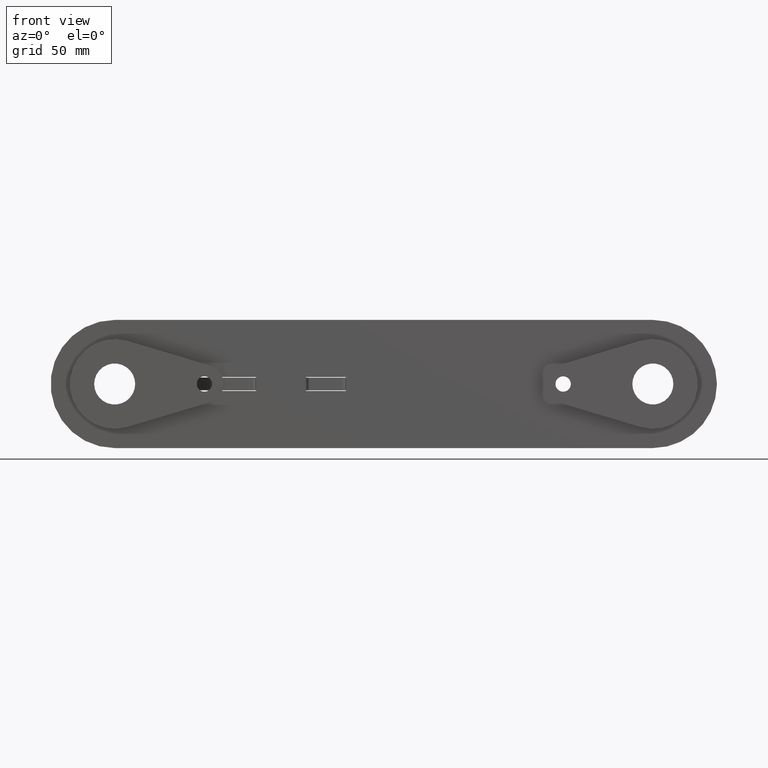
[diagram: clean part render]
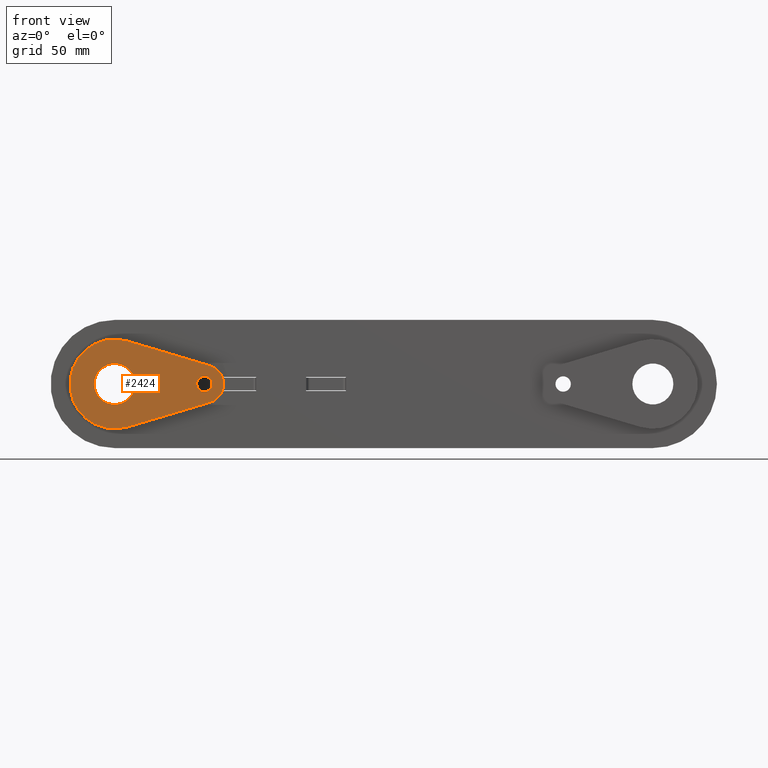
[diagram: same view with one face highlighted and labeled with its STEP entity id]
A machine part, front view. The second image highlights one B-rep face of the part: STEP entity #2424.
In plain terms, the highlighted planar face has unit normal (-0, -1, -0).
Its self-contained STEP definition (entity closure, byte-faithful):
#1 = LINE ( 'NONE', #863, #1151 ) ;
#3 = DIRECTION ( 'NONE',  ( 1.000000000000000000, -8.881784197001216825E-16, 3.081487911019565104E-31 ) ) ;
#19 = CIRCLE ( 'NONE', #204, 7.500000000000027534 ) ;
#39 = CARTESIAN_POINT ( 'NONE',  ( 37.14285714285735196, -7.187361356249414968, 2.775557561562891351E-14 ) ) ;
#52 = VERTEX_POINT ( 'NONE', #2033 ) ;
#70 = CIRCLE ( 'NONE', #921, 3.000000000000016431 ) ;
#75 = AXIS2_PLACEMENT_3D ( 'NONE', #675, #1703, #902 ) ;
#86 = VERTEX_POINT ( 'NONE', #2557 ) ;
#146 = CARTESIAN_POINT ( 'NONE',  ( 0.000000000000000000, 0.000000000000000000, 0.000000000000000000 ) ) ;
#148 = EDGE_CURVE ( 'NONE', #644, #86, #1186, .T. ) ;
#173 = DIRECTION ( 'NONE',  ( 1.000000000000000000, -8.881784197001211894E-16, 0.000000000000000000 ) ) ;
#174 = LINE ( 'NONE', #1888, #448 ) ;
#204 = AXIS2_PLACEMENT_3D ( 'NONE', #2359, #1288, #1694 ) ;
#208 = DIRECTION ( 'NONE',  ( 1.000000000000000000, -8.881784197001216825E-16, 3.081487911019565104E-31 ) ) ;
#256 = CARTESIAN_POINT ( 'NONE',  ( 35.00000000000007105, -4.510281037539698445E-14, 2.775557561562891351E-14 ) ) ;
#282 = DIRECTION ( 'NONE',  ( 3.451266460341922270E-31, 2.588449845256441483E-31, 1.000000000000000000 ) ) ;
#294 = VERTEX_POINT ( 'NONE', #39 ) ;
#332 = DIRECTION ( 'NONE',  ( 3.451266460341922270E-31, 2.588449845256441483E-31, 1.000000000000000000 ) ) ;
#365 = FACE_BOUND ( 'NONE', #2235, .T. ) ;
#377 = PLANE ( 'NONE',  #2591 ) ;
#387 = AXIS2_PLACEMENT_3D ( 'NONE', #2568, #2347, #173 ) ;
#406 = EDGE_LOOP ( 'NONE', ( #1897, #1877 ) ) ;
#414 = CARTESIAN_POINT ( 'NONE',  ( 32.00000000000007105, -4.554032802850601750E-14, 2.775557561562891351E-14 ) ) ;
#446 = CIRCLE ( 'NONE', #75, 7.500000000000027534 ) ;
#448 = VECTOR ( 'NONE', #824, 1000.000000000000114 ) ;
#536 = AXIS2_PLACEMENT_3D ( 'NONE', #2255, #332, #1830 ) ;
#607 = ORIENTED_EDGE ( 'NONE', *, *, #626, .T. ) ;
#626 = EDGE_CURVE ( 'NONE', #1853, #1298, #19, .T. ) ;
#644 = VERTEX_POINT ( 'NONE', #414 ) ;
#657 = CARTESIAN_POINT ( 'NONE',  ( 5.000000000000101252, 16.77050983124844308, 2.081668171172168513E-14 ) ) ;
#673 = CARTESIAN_POINT ( 'NONE',  ( -8.000000000000000000, 4.615697844965258600E-15, 2.761013168273537115E-30 ) ) ;
#675 = CARTESIAN_POINT ( 'NONE',  ( 35.00000000000007105, -4.510281037539698445E-14, 2.775557561562891351E-14 ) ) ;
#714 = CARTESIAN_POINT ( 'NONE',  ( 37.14285714285729512, 7.187361356249231115, 7.632783294297951215E-14 ) ) ;
#802 = ORIENTED_EDGE ( 'NONE', *, *, #1824, .T. ) ;
#824 = DIRECTION ( 'NONE',  ( -0.9583148474999098054, 0.2857142857142860315, -3.389636702121520213E-31 ) ) ;
#863 = CARTESIAN_POINT ( 'NONE',  ( 5.000000000000004441, -16.77050983124852124, 3.469446951953614189E-14 ) ) ;
#902 = DIRECTION ( 'NONE',  ( 1.000000000000000000, -8.881784197001219783E-16, 0.000000000000000000 ) ) ;
#921 = AXIS2_PLACEMENT_3D ( 'NONE', #256, #282, #1576 ) ;
#1068 = VERTEX_POINT ( 'NONE', #673 ) ;
#1151 = VECTOR ( 'NONE', #1714, 1000.000000000000114 ) ;
#1186 = CIRCLE ( 'NONE', #387, 3.000000000000016431 ) ;
#1202 = CIRCLE ( 'NONE', #2774, 8.000000000000031974 ) ;
#1209 = VERTEX_POINT ( 'NONE', #657 ) ;
#1271 = CARTESIAN_POINT ( 'NONE',  ( 0.000000000000000000, 0.000000000000000000, 0.000000000000000000 ) ) ;
#1288 = DIRECTION ( 'NONE',  ( 3.451266460341922270E-31, 2.588449845256441483E-31, 1.000000000000000000 ) ) ;
#1298 = VERTEX_POINT ( 'NONE', #714 ) ;
#1311 = DIRECTION ( 'NONE',  ( 3.451266460341922270E-31, 2.588449845256441483E-31, 1.000000000000000000 ) ) ;
#1375 = EDGE_CURVE ( 'NONE', #86, #644, #70, .T. ) ;
#1430 = CIRCLE ( 'NONE', #2372, 8.000000000000031974 ) ;
#1452 = FACE_OUTER_BOUND ( 'NONE', #1649, .T. ) ;
#1467 = DIRECTION ( 'NONE',  ( -3.081487911019562914E-31, 2.588449845256447176E-31, 1.000000000000000000 ) ) ;
#1483 = DIRECTION ( 'NONE',  ( 3.451266460341922270E-31, 2.588449845256441483E-31, 1.000000000000000000 ) ) ;
#1523 = EDGE_CURVE ( 'NONE', #1298, #1209, #174, .T. ) ;
#1575 = ORIENTED_EDGE ( 'NONE', *, *, #1999, .F. ) ;
#1576 = DIRECTION ( 'NONE',  ( 1.000000000000000000, -8.881784197001211894E-16, 0.000000000000000000 ) ) ;
#1649 = EDGE_LOOP ( 'NONE', ( #802, #1867, #2149, #607, #1757 ) ) ;
#1666 = DIRECTION ( 'NONE',  ( 1.000000000000000000, -8.881784197001216825E-16, 3.081487911019565104E-31 ) ) ;
#1667 = ORIENTED_EDGE ( 'NONE', *, *, #2048, .F. ) ;
#1694 = DIRECTION ( 'NONE',  ( 1.000000000000000000, -8.881784197001219783E-16, 0.000000000000000000 ) ) ;
#1703 = DIRECTION ( 'NONE',  ( 3.451266460341922270E-31, 2.588449845256441483E-31, 1.000000000000000000 ) ) ;
#1712 = VERTEX_POINT ( 'NONE', #2662 ) ;
#1714 = DIRECTION ( 'NONE',  ( 0.9583148474999101385, 0.2857142857142847547, 3.748822636749744078E-31 ) ) ;
#1757 = ORIENTED_EDGE ( 'NONE', *, *, #1523, .T. ) ;
#1824 = EDGE_CURVE ( 'NONE', #1209, #52, #1878, .T. ) ;
#1830 = DIRECTION ( 'NONE',  ( 1.000000000000000000, -8.881784197001215839E-16, 3.081487911019565104E-31 ) ) ;
#1853 = VERTEX_POINT ( 'NONE', #2127 ) ;
#1867 = ORIENTED_EDGE ( 'NONE', *, *, #2634, .T. ) ;
#1877 = ORIENTED_EDGE ( 'NONE', *, *, #148, .F. ) ;
#1878 = CIRCLE ( 'NONE', #536, 17.50000000000007105 ) ;
#1888 = CARTESIAN_POINT ( 'NONE',  ( 5.000000000000101252, 16.77050983124844308, 2.081668171172168513E-14 ) ) ;
#1897 = ORIENTED_EDGE ( 'NONE', *, *, #1375, .F. ) ;
#1901 = FACE_BOUND ( 'NONE', #406, .T. ) ;
#1999 = EDGE_CURVE ( 'NONE', #1068, #1712, #1430, .T. ) ;
#2033 = CARTESIAN_POINT ( 'NONE',  ( 5.000000000000004441, -16.77050983124852124, 3.469446951953614189E-14 ) ) ;
#2048 = EDGE_CURVE ( 'NONE', #1712, #1068, #1202, .T. ) ;
#2127 = CARTESIAN_POINT ( 'NONE',  ( 42.50000000000007105, -5.523359547510150002E-14, 2.775557561562884725E-14 ) ) ;
#2149 = ORIENTED_EDGE ( 'NONE', *, *, #2567, .T. ) ;
#2235 = EDGE_LOOP ( 'NONE', ( #1667, #1575 ) ) ;
#2255 = CARTESIAN_POINT ( 'NONE',  ( 0.000000000000000000, 0.000000000000000000, 0.000000000000000000 ) ) ;
#2347 = DIRECTION ( 'NONE',  ( 3.451266460341922270E-31, 2.588449845256441483E-31, 1.000000000000000000 ) ) ;
#2359 = CARTESIAN_POINT ( 'NONE',  ( 35.00000000000007105, -4.510281037539698445E-14, 2.775557561562891351E-14 ) ) ;
#2372 = AXIS2_PLACEMENT_3D ( 'NONE', #1271, #1483, #208 ) ;
#2424 = ADVANCED_FACE ( 'NONE', ( #1901, #365, #1452 ), #377, .T. ) ;
#2557 = CARTESIAN_POINT ( 'NONE',  ( 38.00000000000009237, -4.776734563449736015E-14, 2.775557561562891351E-14 ) ) ;
#2567 = EDGE_CURVE ( 'NONE', #294, #1853, #446, .T. ) ;
#2568 = CARTESIAN_POINT ( 'NONE',  ( 35.00000000000007105, -4.510281037539698445E-14, 2.775557561562891351E-14 ) ) ;
#2575 = CARTESIAN_POINT ( 'NONE',  ( 0.000000000000000000, 0.000000000000000000, 0.000000000000000000 ) ) ;
#2591 = AXIS2_PLACEMENT_3D ( 'NONE', #146, #1467, #1666 ) ;
#2634 = EDGE_CURVE ( 'NONE', #52, #294, #1, .T. ) ;
#2662 = CARTESIAN_POINT ( 'NONE',  ( 8.000000000000031974, -7.105427357601001859E-15, 2.465190328815661892E-30 ) ) ;
#2774 = AXIS2_PLACEMENT_3D ( 'NONE', #2575, #1311, #3 ) ;